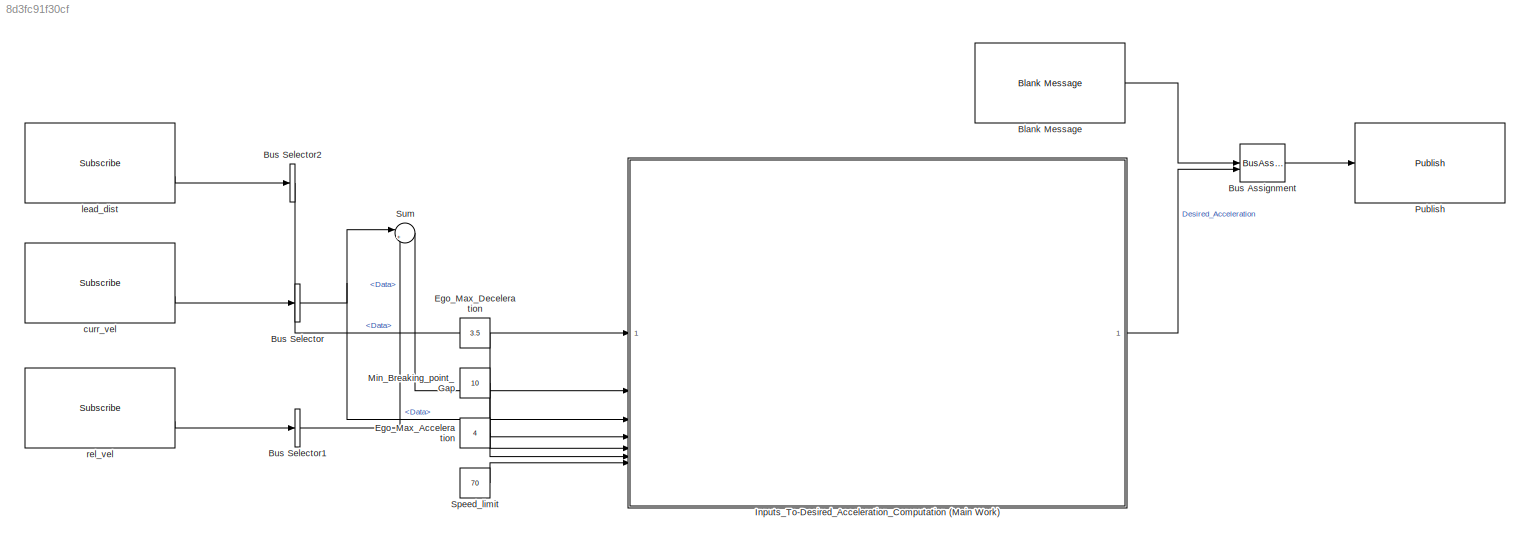
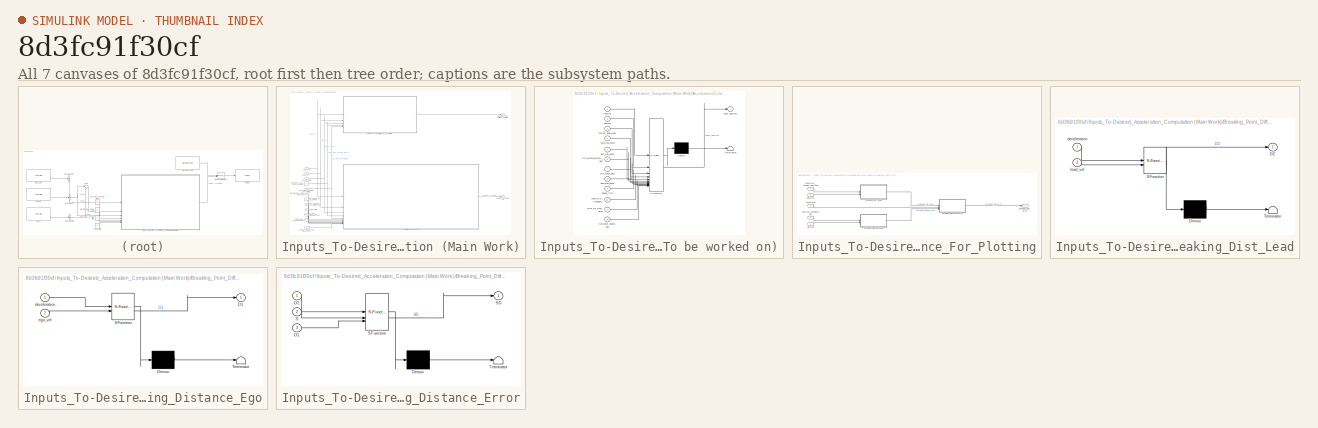
[diagram: thumbnail index - all 7 canvases of the model, root first then tree order]
MODEL slx_8d3fc91f30cf
KIND model
CONFIG AbsTol = auto
CONFIG EnableMultiTasking = off
CONFIG FixedStep = auto
CONFIG MaxStep = auto
CONFIG MinStep = auto
CONFIG RelTol = 1e-3
CONFIG SampleTimeConstraint = Unconstrained
CONFIG SolverName = VariableStepAuto
CONFIG StartTime = 0.0
CONFIG StopTime = inf
BLOCK [Reference] Blank Message  REF=robotlib/Blank Message
  SourceBlock = robotlib/Blank Message
  SourceType = ROS Blank Message
BLOCK [BusAssignment] Bus Assignment
  AssignedSignals = Data
BLOCK [BusSelector] Bus Selector
  OutputSignals = Data
BLOCK [BusSelector] Bus Selector1
  OutputSignals = Data
BLOCK [BusSelector] Bus Selector2
  OutputSignals = Data
BLOCK [Constant] Ego_Max_Acceleration
  Value = 4
BLOCK [Constant] Ego_Max_Deceleration
  Value = 3.5
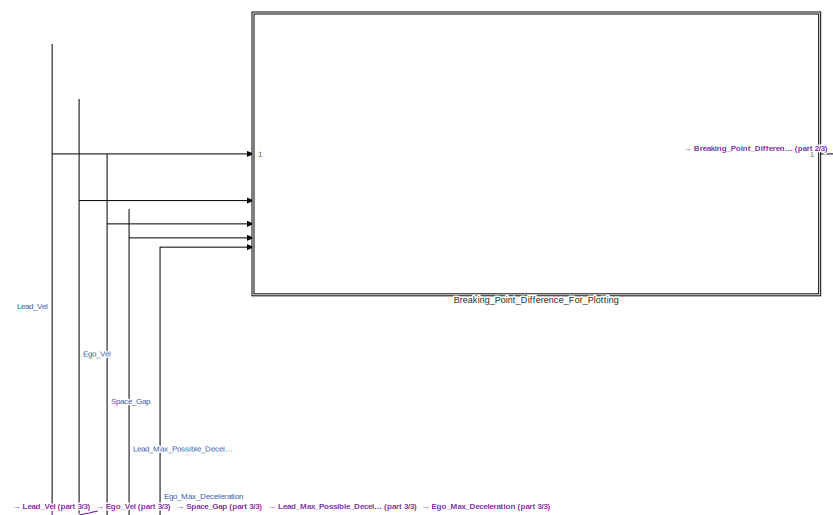
[diagram: Inputs_To-Desired_Acceleration_Computation (Main Work) - part 1/3, top center region]
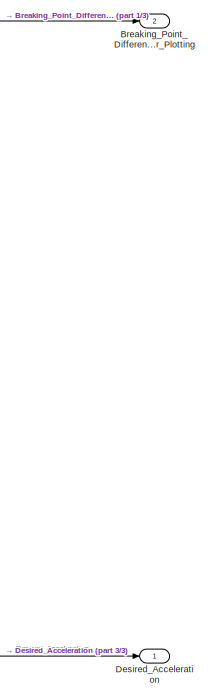
[diagram: Inputs_To-Desired_Acceleration_Computation (Main Work) - part 2/3, middle right region]
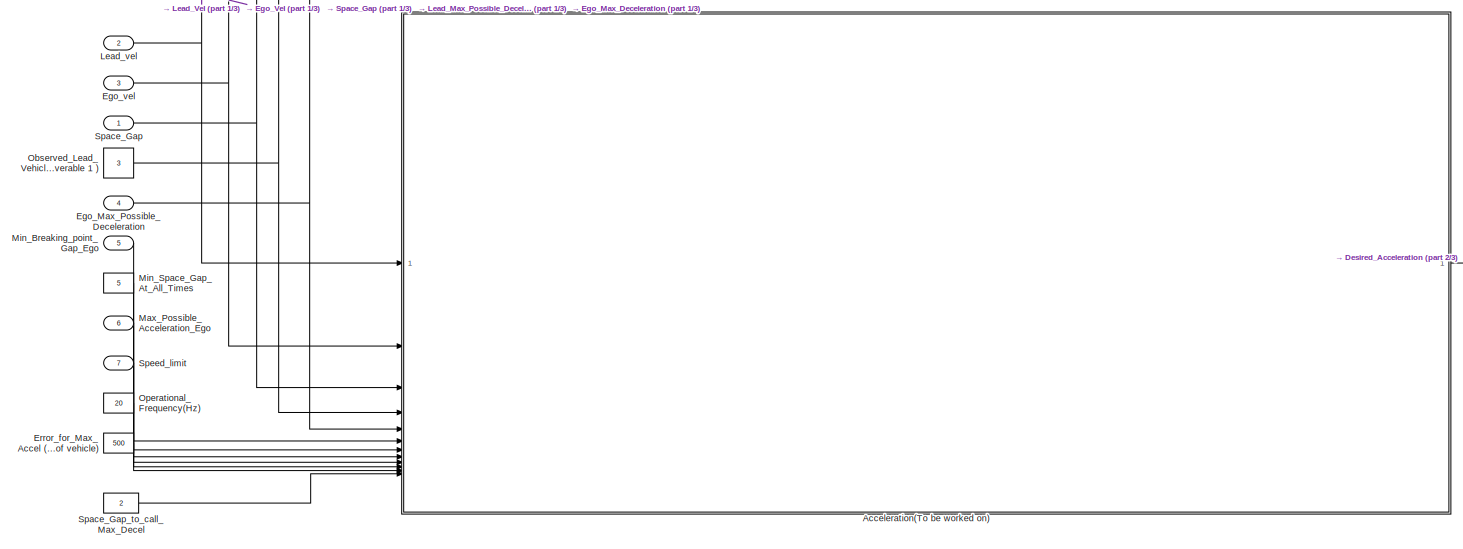
[diagram: Inputs_To-Desired_Acceleration_Computation (Main Work) - part 3/3, full width, bottom band]
BLOCK [SubSystem] Inputs_To-Desired_Acceleration_Computation (Main Work)
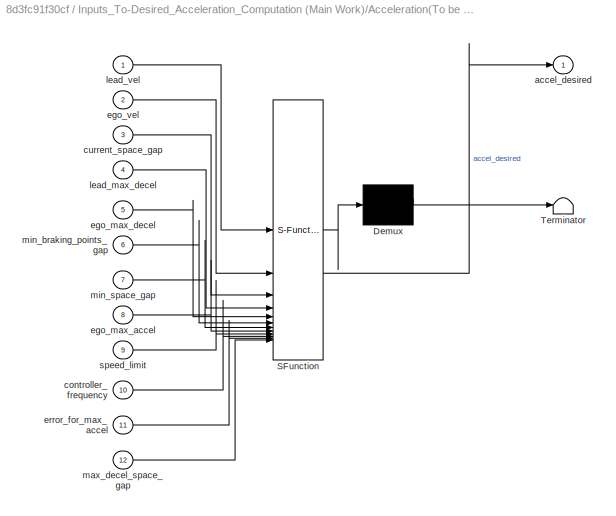
BLOCK [SubSystem] Inputs_To-Desired_Acceleration_Computation (Main Work)/Acceleration(To be worked on)
  ErrorFcn = Stateflow.Translate.translate
  LibrarySourceBlock = simulink/User-Defined\nFunctions/MATLAB Function
  PermitHierarchicalResolution = ExplicitOnly
  SFBlockType = MATLAB Function
  TreatAsAtomicUnit = on
BLOCK [Demux] Inputs_To-Desired_Acceleration_Computation (Main Work)/Acceleration(To be worked on)/ Demux 
  Outputs = 1
BLOCK [S-Function] Inputs_To-Desired_Acceleration_Computation (Main Work)/Acceleration(To be worked on)/ SFunction 
  EnableBusSupport = on
  FunctionName = sf_sfun
  PortCounts = [12 2]
  SFcnIsStateOwnerBlock = off
  SFunctionDeploymentMode = off
  Tag = Stateflow S-Function 1
BLOCK [Terminator] Inputs_To-Desired_Acceleration_Computation (Main Work)/Acceleration(To be worked on)/ Terminator 
BLOCK [Outport] Inputs_To-Desired_Acceleration_Computation (Main Work)/Acceleration(To be worked on)/accel_desired
BLOCK [Inport] Inputs_To-Desired_Acceleration_Computation (Main Work)/Acceleration(To be worked on)/controller_frequency
  Port = 10
BLOCK [Inport] Inputs_To-Desired_Acceleration_Computation (Main Work)/Acceleration(To be worked on)/current_space_gap
  Port = 3
BLOCK [Inport] Inputs_To-Desired_Acceleration_Computation (Main Work)/Acceleration(To be worked on)/ego_max_accel
  Port = 8
BLOCK [Inport] Inputs_To-Desired_Acceleration_Computation (Main Work)/Acceleration(To be worked on)/ego_max_decel
  Port = 5
BLOCK [Inport] Inputs_To-Desired_Acceleration_Computation (Main Work)/Acceleration(To be worked on)/ego_vel
  Port = 2
BLOCK [Inport] Inputs_To-Desired_Acceleration_Computation (Main Work)/Acceleration(To be worked on)/error_for_max_accel
  Port = 11
BLOCK [Inport] Inputs_To-Desired_Acceleration_Computation (Main Work)/Acceleration(To be worked on)/lead_max_decel
  Port = 4
BLOCK [Inport] Inputs_To-Desired_Acceleration_Computation (Main Work)/Acceleration(To be worked on)/lead_vel
BLOCK [Inport] Inputs_To-Desired_Acceleration_Computation (Main Work)/Acceleration(To be worked on)/max_decel_space_gap
  Port = 12
BLOCK [Inport] Inputs_To-Desired_Acceleration_Computation (Main Work)/Acceleration(To be worked on)/min_braking_points_gap
  Port = 6
BLOCK [Inport] Inputs_To-Desired_Acceleration_Computation (Main Work)/Acceleration(To be worked on)/min_space_gap
  Port = 7
BLOCK [Inport] Inputs_To-Desired_Acceleration_Computation (Main Work)/Acceleration(To be worked on)/speed_limit
  Port = 9
BLOCK [SubSystem] Inputs_To-Desired_Acceleration_Computation (Main Work)/Breaking_Point_Difference_For_Plotting
BLOCK [Outport] Inputs_To-Desired_Acceleration_Computation (Main Work)/Breaking_Point_Difference_For_Plotting/Breaking_Dist_Error
BLOCK [SubSystem] Inputs_To-Desired_Acceleration_Computation (Main Work)/Breaking_Point_Difference_For_Plotting/Breaking_Dist_Lead
  ErrorFcn = Stateflow.Translate.translate
  LibrarySourceBlock = simulink/User-Defined\nFunctions/MATLAB Function
  PermitHierarchicalResolution = ExplicitOnly
  SFBlockType = MATLAB Function
  TreatAsAtomicUnit = on
BLOCK [Demux] Inputs_To-Desired_Acceleration_Computation (Main Work)/Breaking_Point_Difference_For_Plotting/Breaking_Dist_Lead/ Demux 
  Outputs = 1
BLOCK [S-Function] Inputs_To-Desired_Acceleration_Computation (Main Work)/Breaking_Point_Difference_For_Plotting/Breaking_Dist_Lead/ SFunction 
  EnableBusSupport = on
  FunctionName = sf_sfun
  PortCounts = [2 2]
  SFcnIsStateOwnerBlock = off
  SFunctionDeploymentMode = off
  Tag = Stateflow S-Function 5
BLOCK [Terminator] Inputs_To-Desired_Acceleration_Computation (Main Work)/Breaking_Point_Difference_For_Plotting/Breaking_Dist_Lead/ Terminator 
BLOCK [Outport] Inputs_To-Desired_Acceleration_Computation (Main Work)/Breaking_Point_Difference_For_Plotting/Breaking_Dist_Lead/D2
BLOCK [Inport] Inputs_To-Desired_Acceleration_Computation (Main Work)/Breaking_Point_Difference_For_Plotting/Breaking_Dist_Lead/deceleration
BLOCK [Inport] Inputs_To-Desired_Acceleration_Computation (Main Work)/Breaking_Point_Difference_For_Plotting/Breaking_Dist_Lead/lead_vel
  Port = 2
BLOCK [SubSystem] Inputs_To-Desired_Acceleration_Computation (Main Work)/Breaking_Point_Difference_For_Plotting/Breaking_Distance_Ego
  ErrorFcn = Stateflow.Translate.translate
  LibrarySourceBlock = simulink/User-Defined\nFunctions/MATLAB Function
  PermitHierarchicalResolution = ExplicitOnly
  SFBlockType = MATLAB Function
  TreatAsAtomicUnit = on
BLOCK [Demux] Inputs_To-Desired_Acceleration_Computation (Main Work)/Breaking_Point_Difference_For_Plotting/Breaking_Distance_Ego/ Demux 
  Outputs = 1
BLOCK [S-Function] Inputs_To-Desired_Acceleration_Computation (Main Work)/Breaking_Point_Difference_For_Plotting/Breaking_Distance_Ego/ SFunction 
  EnableBusSupport = on
  FunctionName = sf_sfun
  PortCounts = [2 2]
  SFcnIsStateOwnerBlock = off
  SFunctionDeploymentMode = off
  Tag = Stateflow S-Function 4
BLOCK [Terminator] Inputs_To-Desired_Acceleration_Computation (Main Work)/Breaking_Point_Difference_For_Plotting/Breaking_Distance_Ego/ Terminator 
BLOCK [Outport] Inputs_To-Desired_Acceleration_Computation (Main Work)/Breaking_Point_Difference_For_Plotting/Breaking_Distance_Ego/D1
BLOCK [Inport] Inputs_To-Desired_Acceleration_Computation (Main Work)/Breaking_Point_Difference_For_Plotting/Breaking_Distance_Ego/deceleration
BLOCK [Inport] Inputs_To-Desired_Acceleration_Computation (Main Work)/Breaking_Point_Difference_For_Plotting/Breaking_Distance_Ego/ego_vel
  Port = 2
BLOCK [SubSystem] Inputs_To-Desired_Acceleration_Computation (Main Work)/Breaking_Point_Difference_For_Plotting/Breaking_Distance_Error
  ErrorFcn = Stateflow.Translate.translate
  LibrarySourceBlock = simulink/User-Defined\nFunctions/MATLAB Function
  PermitHierarchicalResolution = ExplicitOnly
  SFBlockType = MATLAB Function
  TreatAsAtomicUnit = on
BLOCK [Demux] Inputs_To-Desired_Acceleration_Computation (Main Work)/Breaking_Point_Difference_For_Plotting/Breaking_Distance_Error/ Demux 
  Outputs = 1
BLOCK [S-Function] Inputs_To-Desired_Acceleration_Computation (Main Work)/Breaking_Point_Difference_For_Plotting/Breaking_Distance_Error/ SFunction 
  EnableBusSupport = on
  FunctionName = sf_sfun
  PortCounts = [3 2]
  SFcnIsStateOwnerBlock = off
  SFunctionDeploymentMode = off
  Tag = Stateflow S-Function 3
BLOCK [Terminator] Inputs_To-Desired_Acceleration_Computation (Main Work)/Breaking_Point_Difference_For_Plotting/Breaking_Distance_Error/ Terminator 
BLOCK [Inport] Inputs_To-Desired_Acceleration_Computation (Main Work)/Breaking_Point_Difference_For_Plotting/Breaking_Distance_Error/D1
  Port = 3
BLOCK [Inport] Inputs_To-Desired_Acceleration_Computation (Main Work)/Breaking_Point_Difference_For_Plotting/Breaking_Distance_Error/D2
BLOCK [Inport] Inputs_To-Desired_Acceleration_Computation (Main Work)/Breaking_Point_Difference_For_Plotting/Breaking_Distance_Error/S
  Port = 2
BLOCK [Outport] Inputs_To-Desired_Acceleration_Computation (Main Work)/Breaking_Point_Difference_For_Plotting/Breaking_Distance_Error/SD
BLOCK [Inport] Inputs_To-Desired_Acceleration_Computation (Main Work)/Breaking_Point_Difference_For_Plotting/Ego_Vel
  Port = 2
BLOCK [Inport] Inputs_To-Desired_Acceleration_Computation (Main Work)/Breaking_Point_Difference_For_Plotting/Lead_Max_Possible_Deceleration
  Port = 4
BLOCK [Inport] Inputs_To-Desired_Acceleration_Computation (Main Work)/Breaking_Point_Difference_For_Plotting/ego_max_deceleration
  Port = 5
BLOCK [Inport] Inputs_To-Desired_Acceleration_Computation (Main Work)/Breaking_Point_Difference_For_Plotting/lead_vel
BLOCK [Inport] Inputs_To-Desired_Acceleration_Computation (Main Work)/Breaking_Point_Difference_For_Plotting/space_gap
  Port = 3
BLOCK [Outport] Inputs_To-Desired_Acceleration_Computation (Main Work)/Breaking_Point_Difference_for_Plotting
  Port = 2
BLOCK [Outport] Inputs_To-Desired_Acceleration_Computation (Main Work)/Desired_Acceleration
BLOCK [Inport] Inputs_To-Desired_Acceleration_Computation (Main Work)/Ego_Max_Possible_Deceleration
  Port = 4
BLOCK [Inport] Inputs_To-Desired_Acceleration_Computation (Main Work)/Ego_vel
  Port = 3
BLOCK [Constant] Inputs_To-Desired_Acceleration_Computation (Main Work)/Error_for_Max_Accel (The error distance in breaking points which is threshold for using max acceleration of vehicle)
  Value = 500
BLOCK [Inport] Inputs_To-Desired_Acceleration_Computation (Main Work)/Lead_vel
  Port = 2
BLOCK [Inport] Inputs_To-Desired_Acceleration_Computation (Main Work)/Max_Possible_Acceleration_Ego
  Port = 6
BLOCK [Inport] Inputs_To-Desired_Acceleration_Computation (Main Work)/Min_Breaking_point_Gap_Ego
  Port = 5
BLOCK [Constant] Inputs_To-Desired_Acceleration_Computation (Main Work)/Min_Space_Gap_At_All_Times
  Value = 5
BLOCK [Constant] Inputs_To-Desired_Acceleration_Computation (Main Work)/Observed_Lead_Vehicle_Max_Deceleration (For now keeping one fixed value to all vehicles for scope of deliverable 1 )
  NameLocation = left
  Value = 3
BLOCK [Constant] Inputs_To-Desired_Acceleration_Computation (Main Work)/Operational_Frequency(Hz)
  Value = 20
BLOCK [Inport] Inputs_To-Desired_Acceleration_Computation (Main Work)/Space_Gap
BLOCK [Constant] Inputs_To-Desired_Acceleration_Computation (Main Work)/Space_Gap_to_call_Max_Decel
  Value = 2
BLOCK [Inport] Inputs_To-Desired_Acceleration_Computation (Main Work)/Speed_limit
  Port = 7
BLOCK [Constant] Min_Breaking_point_Gap
  Value = 10
BLOCK [Reference] Publish  REF=robotlib/Publish
  SourceBlock = robotlib/Publish
  SourceType = ROS Publish
BLOCK [Constant] Speed_limit
  Value = 70
BLOCK [Sum] Sum
  Inputs = |++
BLOCK [Reference] curr_vel  REF=robotlib/Subscribe
  SourceBlock = robotlib/Subscribe
  SourceType = ROS Subscribe
BLOCK [Reference] lead_dist  REF=robotlib/Subscribe
  SourceBlock = robotlib/Subscribe
  SourceType = ROS Subscribe
BLOCK [Reference] rel_vel  REF=robotlib/Subscribe
  SourceBlock = robotlib/Subscribe
  SourceType = ROS Subscribe
LINE Blank Message:1 -> Bus Assignment:1
LINE Bus Assignment:1 -> Publish:1
LINE Bus Selector1:1 -> Sum:2
LINE Bus Selector2:1 -> Inputs_To-Desired_Acceleration_Computation (Main Work):1
NET Bus Selector:1 -> Inputs_To-Desired_Acceleration_Computation (Main Work):3, Sum:1
LINE Ego_Max_Acceleration:1 -> Inputs_To-Desired_Acceleration_Computation (Main Work):6
LINE Ego_Max_Deceleration:1 -> Inputs_To-Desired_Acceleration_Computation (Main Work):4
LINE Inputs_To-Desired_Acceleration_Computation (Main Work)/Acceleration(To be worked on):1 -> Inputs_To-Desired_Acceleration_Computation (Main Work)/Desired_Acceleration:1
LINE Inputs_To-Desired_Acceleration_Computation (Main Work)/Breaking_Point_Difference_For_Plotting/Breaking_Dist_Lead:1 -> Inputs_To-Desired_Acceleration_Computation (Main Work)/Breaking_Point_Difference_For_Plotting/Breaking_Distance_Error:1
LINE Inputs_To-Desired_Acceleration_Computation (Main Work)/Breaking_Point_Difference_For_Plotting/Breaking_Distance_Ego:1 -> Inputs_To-Desired_Acceleration_Computation (Main Work)/Breaking_Point_Difference_For_Plotting/Breaking_Distance_Error:3
LINE Inputs_To-Desired_Acceleration_Computation (Main Work)/Breaking_Point_Difference_For_Plotting/Breaking_Distance_Error:1 -> Inputs_To-Desired_Acceleration_Computation (Main Work)/Breaking_Point_Difference_For_Plotting/Breaking_Dist_Error:1
LINE Inputs_To-Desired_Acceleration_Computation (Main Work)/Breaking_Point_Difference_For_Plotting/Ego_Vel:1 -> Inputs_To-Desired_Acceleration_Computation (Main Work)/Breaking_Point_Difference_For_Plotting/Breaking_Distance_Ego:2
LINE Inputs_To-Desired_Acceleration_Computation (Main Work)/Breaking_Point_Difference_For_Plotting/Lead_Max_Possible_Deceleration:1 -> Inputs_To-Desired_Acceleration_Computation (Main Work)/Breaking_Point_Difference_For_Plotting/Breaking_Dist_Lead:1
LINE Inputs_To-Desired_Acceleration_Computation (Main Work)/Breaking_Point_Difference_For_Plotting/ego_max_deceleration:1 -> Inputs_To-Desired_Acceleration_Computation (Main Work)/Breaking_Point_Difference_For_Plotting/Breaking_Distance_Ego:1
LINE Inputs_To-Desired_Acceleration_Computation (Main Work)/Breaking_Point_Difference_For_Plotting/lead_vel:1 -> Inputs_To-Desired_Acceleration_Computation (Main Work)/Breaking_Point_Difference_For_Plotting/Breaking_Dist_Lead:2
LINE Inputs_To-Desired_Acceleration_Computation (Main Work)/Breaking_Point_Difference_For_Plotting/space_gap:1 -> Inputs_To-Desired_Acceleration_Computation (Main Work)/Breaking_Point_Difference_For_Plotting/Breaking_Distance_Error:2
LINE Inputs_To-Desired_Acceleration_Computation (Main Work)/Breaking_Point_Difference_For_Plotting:1 -> Inputs_To-Desired_Acceleration_Computation (Main Work)/Breaking_Point_Difference_for_Plotting:1
NET Inputs_To-Desired_Acceleration_Computation (Main Work)/Ego_Max_Possible_Deceleration:1 -> Inputs_To-Desired_Acceleration_Computation (Main Work)/Acceleration(To be worked on):5, Inputs_To-Desired_Acceleration_Computation (Main Work)/Breaking_Point_Difference_For_Plotting:5
NET Inputs_To-Desired_Acceleration_Computation (Main Work)/Ego_vel:1 -> Inputs_To-Desired_Acceleration_Computation (Main Work)/Acceleration(To be worked on):2, Inputs_To-Desired_Acceleration_Computation (Main Work)/Breaking_Point_Difference_For_Plotting:2
LINE Inputs_To-Desired_Acceleration_Computation (Main Work)/Error_for_Max_Accel (The error distance in breaking points which is threshold for using max acceleration of vehicle):1 -> Inputs_To-Desired_Acceleration_Computation (Main Work)/Acceleration(To be worked on):11
NET Inputs_To-Desired_Acceleration_Computation (Main Work)/Lead_vel:1 -> Inputs_To-Desired_Acceleration_Computation (Main Work)/Acceleration(To be worked on):1, Inputs_To-Desired_Acceleration_Computation (Main Work)/Breaking_Point_Difference_For_Plotting:1
LINE Inputs_To-Desired_Acceleration_Computation (Main Work)/Max_Possible_Acceleration_Ego:1 -> Inputs_To-Desired_Acceleration_Computation (Main Work)/Acceleration(To be worked on):8
LINE Inputs_To-Desired_Acceleration_Computation (Main Work)/Min_Breaking_point_Gap_Ego:1 -> Inputs_To-Desired_Acceleration_Computation (Main Work)/Acceleration(To be worked on):6
LINE Inputs_To-Desired_Acceleration_Computation (Main Work)/Min_Space_Gap_At_All_Times:1 -> Inputs_To-Desired_Acceleration_Computation (Main Work)/Acceleration(To be worked on):7
NET Inputs_To-Desired_Acceleration_Computation (Main Work)/Observed_Lead_Vehicle_Max_Deceleration (For now keeping one fixed value to all vehicles for scope of deliverable 1 ):1 -> Inputs_To-Desired_Acceleration_Computation (Main Work)/Acceleration(To be worked on):4, Inputs_To-Desired_Acceleration_Computation (Main Work)/Breaking_Point_Difference_For_Plotting:4
LINE Inputs_To-Desired_Acceleration_Computation (Main Work)/Operational_Frequency(Hz):1 -> Inputs_To-Desired_Acceleration_Computation (Main Work)/Acceleration(To be worked on):10
NET Inputs_To-Desired_Acceleration_Computation (Main Work)/Space_Gap:1 -> Inputs_To-Desired_Acceleration_Computation (Main Work)/Acceleration(To be worked on):3, Inputs_To-Desired_Acceleration_Computation (Main Work)/Breaking_Point_Difference_For_Plotting:3
LINE Inputs_To-Desired_Acceleration_Computation (Main Work)/Space_Gap_to_call_Max_Decel:1 -> Inputs_To-Desired_Acceleration_Computation (Main Work)/Acceleration(To be worked on):12
LINE Inputs_To-Desired_Acceleration_Computation (Main Work)/Speed_limit:1 -> Inputs_To-Desired_Acceleration_Computation (Main Work)/Acceleration(To be worked on):9
LINE Inputs_To-Desired_Acceleration_Computation (Main Work):1 -> Bus Assignment:2
LINE Min_Breaking_point_Gap:1 -> Inputs_To-Desired_Acceleration_Computation (Main Work):5
LINE Speed_limit:1 -> Inputs_To-Desired_Acceleration_Computation (Main Work):7
LINE Sum:1 -> Inputs_To-Desired_Acceleration_Computation (Main Work):2
LINE curr_vel:2 -> Bus Selector:1
LINE lead_dist:2 -> Bus Selector2:1
LINE rel_vel:2 -> Bus Selector1:1
note: NET lines group one-source signal fan-out (src -> all destinations, sorted); 1:1 wires keep LINE
CHART Inputs_To-Desired_Acceleration_Computation
(Main Work)/Acceleration(To be worked on) states=1 transitions=1
  STATE_LABEL 'eML_blk_kernel()'
  STATE_LABEL 'SCRIPT:\nfunction accel_desired = accel_ctrl_(lead_vel, ego_vel, current_space_gap, ...\n    lead_max_decel, ego_max_decel, min_braking_points_gap, min_space_gap, ...\n    ego_max_accel, speed_limit, controller_frequency, error_for_max_accel, max_decel_space_gap)\n    % ACCEL_CTRL_ Calculates the desired acceleration for the ego vehicle to maintain\n    % a safe following distance behind a lead vehicle...<+3608ch>'
CHART Inputs_To-Desired_Acceleration_Computation
(Main Work)/Breaking_Point_Difference_For_Plotting/Breaking_Distance_Error states=1 transitions=1
  STATE_LABEL 'eML_blk_kernel()'
  STATE_LABEL 'SCRIPT:\nfunction SD = stop_dist_diff(D2, S, D1)\n\nSD = (D2+S)-D1;\n'
CHART Inputs_To-Desired_Acceleration_Computation
(Main Work)/Breaking_Point_Difference_For_Plotting/Breaking_Distance_Ego states=1 transitions=1
  STATE_LABEL 'eML_blk_kernel()'
  STATE_LABEL 'SCRIPT:\nfunction D1 = D1(deceleration, ego_vel)\n    f=0.55; % coeff. friction\n    g=9.8;\n    D1 = (ego_vel^2 / (2*deceleration))+((ego_vel^2/(2*g))*f);\n'
CHART Inputs_To-Desired_Acceleration_Computation
(Main Work)/Breaking_Point_Difference_For_Plotting/Breaking_Dist_Lead states=1 transitions=1
  STATE_LABEL 'eML_blk_kernel()'
  STATE_LABEL 'SCRIPT:\nfunction D2 = D2(deceleration, lead_vel)\n    f=0.55; % coeff. friction\n    g=9.8;\n    D2 = (lead_vel^2 / (2*deceleration))+((lead_vel^2/(2*g))*f);\n'
CHART  states=0 transitions=0
CHART  states=0 transitions=0
CHART  states=0 transitions=0
CHART  states=0 transitions=0
